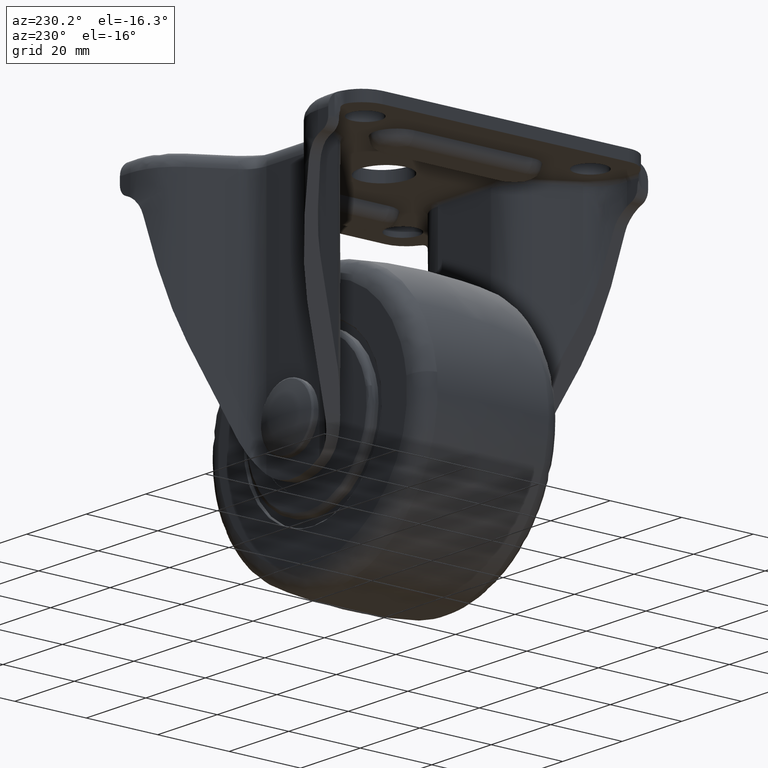
[diagram: clean part render]
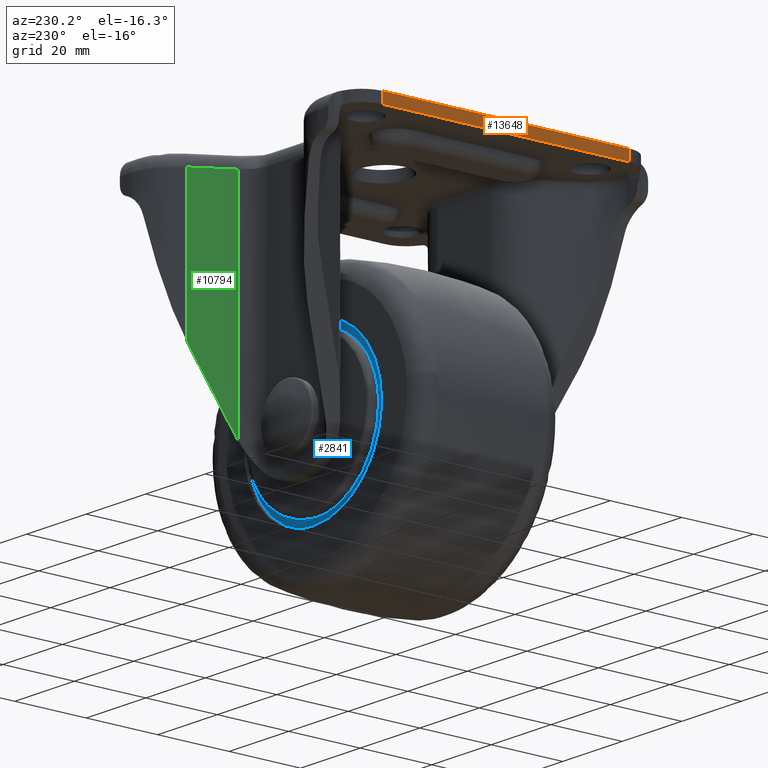
[diagram: same view with three faces highlighted in distinct colors, each labeled with its STEP entity id]
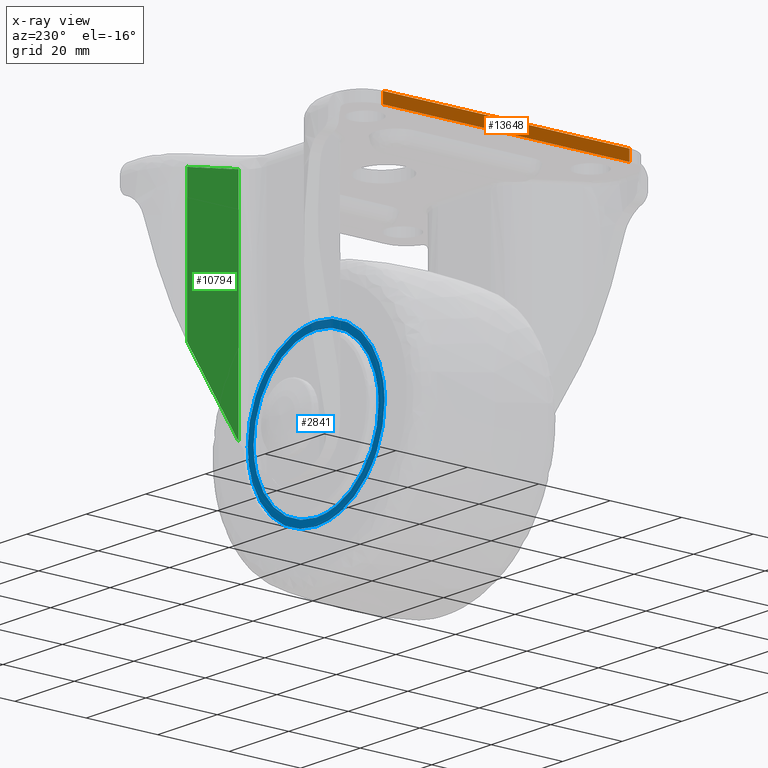
[diagram: x-ray of the same camera — body ghosted, the three highlighted faces saturated]
A machine part, auxiliary view with three faces highlighted in distinct colors.
The next image is the same camera in x-ray (body ghosted, the three faces saturated) — at least one of them is partly hidden behind the body in this view.
Their STEP definitions:

[orange] entity #13648 — the highlighted face is a freeform B-spline surface patch.
#11129=CARTESIAN_POINT('',(-40.999999999998302,-34.499995113078100,59.500002999999801));
#11130=VERTEX_POINT('',#11129);
#11141=CARTESIAN_POINT('',(-41.0,34.500000000000000,59.500002999999801));
#11142=VERTEX_POINT('',#11141);
#11143=CARTESIAN_POINT('',(-40.999999999998302,-34.499995113078100,59.500002999999801));
#11144=CARTESIAN_POINT('',(-41.0,34.500000000000000,59.500002999999801));
#11145=QUASI_UNIFORM_CURVE('',1,(#11143,#11144),.UNSPECIFIED.,.F.,.U.);
#11146=EDGE_CURVE('',#11130,#11142,#11145,.T.);
#13605=CARTESIAN_POINT('',(-40.999999999998302,-34.499995113078100,62.500000000000000));
#13606=VERTEX_POINT('',#13605);
#13617=CARTESIAN_POINT('',(-40.999999999998302,-34.499995113078100,59.500002999999801));
#13618=CARTESIAN_POINT('',(-40.999999999998302,-34.499995113078100,62.500000000000000));
#13619=QUASI_UNIFORM_CURVE('',1,(#13617,#13618),.UNSPECIFIED.,.F.,.U.);
#13620=EDGE_CURVE('',#11130,#13606,#13619,.T.);
#13627=CARTESIAN_POINT('',(-41.0,-37.946544735240970,62.649849844335442));
#13628=CARTESIAN_POINT('',(-41.0,-37.946544735240970,59.350153075198179));
#13629=CARTESIAN_POINT('',(-41.0,37.946551472886959,62.649849844335442));
#13630=CARTESIAN_POINT('',(-41.0,37.946551472886959,59.350153075198179));
#13631=B_SPLINE_SURFACE_WITH_KNOTS('',1,1,((#13627,#13629),(#13628,#13630)),.UNSPECIFIED.,.F.,.F.,.U.,(2,2),(2,2),(0.0,3.299696769137256),(0.0,75.893096208127929),.UNSPECIFIED.);
#13632=CARTESIAN_POINT('',(-41.0,34.500000000000000,62.500000000000000));
#13633=VERTEX_POINT('',#13632);
#13634=CARTESIAN_POINT('',(-40.999999999998302,-34.499995113078100,62.500000000000000));
#13635=CARTESIAN_POINT('',(-41.0,34.500000000000000,62.500000000000000));
#13636=QUASI_UNIFORM_CURVE('',1,(#13634,#13635),.UNSPECIFIED.,.F.,.U.);
#13637=EDGE_CURVE('',#13606,#13633,#13636,.T.);
#13638=ORIENTED_EDGE('',*,*,#13637,.T.);
#13639=CARTESIAN_POINT('',(-41.0,34.500000000000000,59.500002999999801));
#13640=CARTESIAN_POINT('',(-41.0,34.500000000000000,62.500000000000000));
#13641=QUASI_UNIFORM_CURVE('',1,(#13639,#13640),.UNSPECIFIED.,.F.,.U.);
#13642=EDGE_CURVE('',#11142,#13633,#13641,.T.);
#13643=ORIENTED_EDGE('',*,*,#13642,.F.);
#13644=ORIENTED_EDGE('',*,*,#11146,.F.);
#13645=ORIENTED_EDGE('',*,*,#13620,.T.);
#13646=EDGE_LOOP('',(#13638,#13643,#13644,#13645));
#13647=FACE_OUTER_BOUND('',#13646,.T.);
#13648=ADVANCED_FACE('',(#13647),#13631,.F.);

[blue] entity #2841 — the highlighted face is a freeform B-spline surface patch.
#2475=CARTESIAN_POINT('',(15.482824461624960,19.0,14.187394547029900));
#2476=VERTEX_POINT('',#2475);
#2482=CARTESIAN_POINT('',(21.000000000000501,19.0,0.000001657983934));
#2483=VERTEX_POINT('',#2482);
#2484=CARTESIAN_POINT('',(21.000000000000501,19.0,0.000001657983934));
#2485=CARTESIAN_POINT('',(21.000169291051652,19.0,1.379231354852942));
#2486=CARTESIAN_POINT('',(20.719297831476290,19.000000000000028,4.218734898100919));
#2487=CARTESIAN_POINT('',(19.484713548870861,18.999999999999961,8.191540467389942));
#2488=CARTESIAN_POINT('',(17.653999728538668,19.000000000000039,11.555187629441900));
#2489=CARTESIAN_POINT('',(16.195384745036002,19.0,13.409814154632230));
#2490=CARTESIAN_POINT('',(15.482824461624960,19.0,14.187394547029900));
#2491=B_SPLINE_CURVE_WITH_KNOTS('',3,(#2484,#2485,#2486,#2487,#2488,#2489,#2490),.UNSPECIFIED.,.F.,.U.,(4,1,1,1,4),(0.000000030301367,4.137681123489713,8.518721137977064,12.413048120190480,15.577149126204571),.UNSPECIFIED.);
#2492=EDGE_CURVE('',#2483,#2476,#2491,.T.);
#2494=CARTESIAN_POINT('',(1.116884E-012,19.0,-21.000000000000028));
#2495=VERTEX_POINT('',#2494);
#2496=CARTESIAN_POINT('',(1.116884E-012,19.0,-21.000000000000028));
#2497=CARTESIAN_POINT('',(1.718091372413424,19.000000000000011,-21.000425865638160));
#2498=CARTESIAN_POINT('',(4.638560144955660,18.999999999999989,-20.639487943904740));
#2499=CARTESIAN_POINT('',(8.552049365969726,19.0,-19.293089201940749));
#2500=CARTESIAN_POINT('',(11.875649675141480,19.0,-17.463886673555301));
#2501=CARTESIAN_POINT('',(14.678044356017150,19.000000000000021,-15.163993810950659));
#2502=CARTESIAN_POINT('',(16.815856608979939,18.999999999999890,-12.685421562266280));
#2503=CARTESIAN_POINT('',(18.599463003712660,18.999999999999950,-9.944102703702026));
#2504=CARTESIAN_POINT('',(19.998686584445728,19.000000000000110,-6.787595196559463));
#2505=CARTESIAN_POINT('',(20.835272294766948,18.999999999999780,-3.264284616464492));
#2506=CARTESIAN_POINT('',(21.000039995136252,19.000000000000490,-1.030813686327171));
#2507=CARTESIAN_POINT('',(21.000000000000501,19.0,0.000001657983934));
#2508=B_SPLINE_CURVE_WITH_KNOTS('',3,(#2496,#2497,#2498,#2499,#2500,#2501,#2502,#2503,#2504,#2505,#2506,#2507),.UNSPECIFIED.,.F.,.U.,(4,1,1,1,1,1,1,1,1,4),(0.000000055669297,5.154174273187334,8.762160365250193,12.370137958800340,16.493465434182770,19.585936855349779,22.163071373979200,26.286477394870460,29.894459353193842,32.986930774850428),.UNSPECIFIED.);
#2509=EDGE_CURVE('',#2495,#2483,#2508,.T.);
#2511=CARTESIAN_POINT('',(-15.482824461622650,19.0,-14.187394547030991));
#2512=VERTEX_POINT('',#2511);
#2513=CARTESIAN_POINT('',(-15.482824461622650,19.0,-14.187394547030991));
#2514=CARTESIAN_POINT('',(-14.625291336000620,19.0,-15.123431313918619));
#2515=CARTESIAN_POINT('',(-12.941695878353570,19.000000000000039,-16.655308109090459));
#2516=CARTESIAN_POINT('',(-9.969305149619402,18.999999999999979,-18.587736170063469));
#2517=CARTESIAN_POINT('',(-7.135821766064234,19.000000000000028,-19.834455142539010));
#2518=CARTESIAN_POINT('',(-3.717612214257206,18.999999999999961,-20.764112160579529));
#2519=CARTESIAN_POINT('',(-1.450824025529892,19.000000000000050,-21.000208976023469));
#2520=CARTESIAN_POINT('',(1.116884E-012,19.0,-21.000000000000028));
#2521=B_SPLINE_CURVE_WITH_KNOTS('',3,(#2513,#2514,#2515,#2516,#2517,#2518,#2519,#2520),.UNSPECIFIED.,.F.,.U.,(4,1,1,1,1,4),(0.000000017965917,3.808383496462229,6.800713682195111,10.609067632195311,13.057335976819950,17.409781296427369),.UNSPECIFIED.);
#2522=EDGE_CURVE('',#2512,#2495,#2521,.T.);
#2556=CARTESIAN_POINT('',(-20.999999999998270,19.0,-0.000001657984652));
#2557=VERTEX_POINT('',#2556);
#2558=CARTESIAN_POINT('',(-20.999999999998270,19.0,-0.000001657984652));
#2559=CARTESIAN_POINT('',(-21.000105366327510,19.0,-1.216964334404704));
#2560=CARTESIAN_POINT('',(-20.809008426063560,19.000000000000021,-3.407451477131334));
#2561=CARTESIAN_POINT('',(-19.927259710053391,19.000000000000021,-6.959390186099610));
#2562=CARTESIAN_POINT('',(-18.307368922146750,18.999999999999950,-10.613467338646730));
#2563=CARTESIAN_POINT('',(-16.524471149868191,19.000000000000039,-13.051077744544090));
#2564=CARTESIAN_POINT('',(-15.482824461622650,19.0,-14.187394547030991));
#2565=B_SPLINE_CURVE_WITH_KNOTS('',3,(#2558,#2559,#2560,#2561,#2562,#2563,#2564),.UNSPECIFIED.,.F.,.U.,(4,1,1,1,4),(0.000000030300750,3.650893485055645,6.571637548454463,10.952675584250150,15.577149126204979),.UNSPECIFIED.);
#2566=EDGE_CURVE('',#2557,#2512,#2565,.T.);
#2568=CARTESIAN_POINT('',(1.116884E-012,19.0,20.999999999998870));
#2569=VERTEX_POINT('',#2568);
#2570=CARTESIAN_POINT('',(1.116884E-012,19.0,20.999999999998870));
#2571=CARTESIAN_POINT('',(-1.975860493101105,19.000000000000028,21.000843221810609));
#2572=CARTESIAN_POINT('',(-5.239707996098047,19.0,20.535708861117769));
#2573=CARTESIAN_POINT('',(-9.093817666192557,19.0,19.021593019611199));
#2574=CARTESIAN_POINT('',(-11.993757538752240,18.999999999999989,17.331402816441930));
#2575=CARTESIAN_POINT('',(-14.821196357671850,19.000000000000089,15.068826574531240));
#2576=CARTESIAN_POINT('',(-17.325117687140541,19.000000000000060,12.092877899435790));
#2577=CARTESIAN_POINT('',(-19.341874362095499,18.999999999999961,8.481288214840919));
#2578=CARTESIAN_POINT('',(-20.666492526646049,18.999999999999950,4.552768653733915));
#2579=CARTESIAN_POINT('',(-21.000229683417398,19.000000000000082,1.546266475202366));
#2580=CARTESIAN_POINT('',(-20.999999999998270,19.0,-0.000001657984652));
#2581=B_SPLINE_CURVE_WITH_KNOTS('',3,(#2570,#2571,#2572,#2573,#2574,#2575,#2576,#2577,#2578,#2579,#2580),.UNSPECIFIED.,.F.,.U.,(4,1,1,1,1,1,1,1,4),(0.000000055671372,5.927321689206934,9.793010010426862,12.370137958801120,15.978062319754921,20.616809372167928,23.967061272362521,28.348146016974361,32.986930774850173),.UNSPECIFIED.);
#2582=EDGE_CURVE('',#2569,#2557,#2581,.T.);
#2584=CARTESIAN_POINT('',(15.482824461624960,19.0,14.187394547029900));
#2585=CARTESIAN_POINT('',(14.441624998417019,18.999999999999940,15.324132493410220));
#2586=CARTESIAN_POINT('',(12.725092156874780,19.000000000000099,16.825689041740599));
#2587=CARTESIAN_POINT('',(9.565153154212620,18.999999999999961,18.793798151149272));
#2588=CARTESIAN_POINT('',(6.796134316692088,18.999999999999950,19.969629513313109));
#2589=CARTESIAN_POINT('',(3.354937134474330,19.000000000000149,20.810248215182991));
#2590=CARTESIAN_POINT('',(1.269462863671520,18.999999999999812,21.000145897368728));
#2591=CARTESIAN_POINT('',(1.116884E-012,19.0,20.999999999998870));
#2592=B_SPLINE_CURVE_WITH_KNOTS('',3,(#2584,#2585,#2586,#2587,#2588,#2589,#2590,#2591),.UNSPECIFIED.,.F.,.U.,(4,1,1,1,1,4),(0.000000017965682,4.624476304236261,6.800713682194999,11.153124177949341,13.601397817946170,17.409781296427401),.UNSPECIFIED.);
#2593=EDGE_CURVE('',#2476,#2569,#2592,.T.);
#2741=CARTESIAN_POINT('',(-25.297699910841288,19.0,-25.297699910843050));
#2742=CARTESIAN_POINT('',(25.297701144659669,19.0,-25.297699910843050));
#2743=CARTESIAN_POINT('',(-25.297699910841288,19.0,25.297701144658038));
#2744=CARTESIAN_POINT('',(25.297701144659669,19.0,25.297701144658038));
#2745=B_SPLINE_SURFACE_WITH_KNOTS('',1,1,((#2741,#2743),(#2742,#2744)),.UNSPECIFIED.,.F.,.F.,.U.,(2,2),(2,2),(0.0,50.595401055500957),(0.0,50.595401055501092),.UNSPECIFIED.);
#2746=CARTESIAN_POINT('',(16.957379000974640,19.000000000000028,15.538575082572139));
#2747=VERTEX_POINT('',#2746);
#2748=CARTESIAN_POINT('',(1.116884E-012,19.0,22.999999999998870));
#2749=VERTEX_POINT('',#2748);
#2750=CARTESIAN_POINT('',(16.957379000974640,19.000000000000028,15.538575082572139));
#2751=CARTESIAN_POINT('',(16.185840703140919,19.000000000000011,16.380638114083009));
#2752=CARTESIAN_POINT('',(14.589528189285710,19.000000000000028,17.881261411170229));
#2753=CARTESIAN_POINT('',(11.819541614398700,18.999999999999989,19.825827590819550));
#2754=CARTESIAN_POINT('',(9.016808398731447,19.000000000000089,21.236534932274960));
#2755=CARTESIAN_POINT('',(5.064540138746788,18.999999999999901,22.591849461699649));
#2756=CARTESIAN_POINT('',(2.085646246503087,19.000000000000089,23.000823111614871));
#2757=CARTESIAN_POINT('',(1.116884E-012,19.0,22.999999999998870));
#2758=B_SPLINE_CURVE_WITH_KNOTS('',3,(#2750,#2751,#2752,#2753,#2754,#2755,#2756,#2757),.UNSPECIFIED.,.F.,.U.,(4,1,1,1,1,4),(0.000000041024030,3.426231150014282,6.554556472152408,10.129734018247660,12.811134814019789,19.067755514547191),.UNSPECIFIED.);
#2759=EDGE_CURVE('',#2747,#2749,#2758,.T.);
#2760=ORIENTED_EDGE('',*,*,#2759,.F.);
#2761=CARTESIAN_POINT('',(23.000000000000512,19.0,0.000001586858210));
#2762=VERTEX_POINT('',#2761);
#2763=CARTESIAN_POINT('',(23.000000000000512,19.0,0.000001586858210));
#2764=CARTESIAN_POINT('',(23.000024780136020,19.000000000000011,1.155135102938022));
#2765=CARTESIAN_POINT('',(22.792252737362539,19.000000000000028,3.909769607866776));
#2766=CARTESIAN_POINT('',(21.823251401895199,18.999999999999979,7.627164736737230));
#2767=CARTESIAN_POINT('',(19.934321203586759,19.000000000000050,11.758594258451060));
#2768=CARTESIAN_POINT('',(18.218388594404079,19.000000000000021,14.163077304389850));
#2769=CARTESIAN_POINT('',(16.957379000974640,19.000000000000028,15.538575082572139));
#2770=B_SPLINE_CURVE_WITH_KNOTS('',3,(#2763,#2764,#2765,#2766,#2767,#2768,#2769),.UNSPECIFIED.,.F.,.U.,(4,1,1,1,4),(0.000000025487452,3.465446280717336,8.263783988982929,11.462648278612900,17.060687537385689),.UNSPECIFIED.);
#2771=EDGE_CURVE('',#2762,#2747,#2770,.T.);
#2772=ORIENTED_EDGE('',*,*,#2771,.F.);
#2773=CARTESIAN_POINT('',(1.116884E-012,19.0,-23.000000000000028));
#2774=VERTEX_POINT('',#2773);
#2775=CARTESIAN_POINT('',(1.116884E-012,19.0,-23.000000000000028));
#2776=CARTESIAN_POINT('',(1.975815688325964,18.999999999999940,-23.000551768540220));
#2777=CARTESIAN_POINT('',(5.174376334408025,19.000000000000160,-22.585207929721161));
#2778=CARTESIAN_POINT('',(9.182027397799557,18.999999999999829,-21.178643469755059));
#2779=CARTESIAN_POINT('',(12.519549489026071,19.000000000000181,-19.421132936302278));
#2780=CARTESIAN_POINT('',(15.228032841310510,18.999999999999869,-17.360362709949349));
#2781=CARTESIAN_POINT('',(17.647402123995111,18.999999999999940,-14.850020965520040));
#2782=CARTESIAN_POINT('',(19.783127006864280,19.000000000000039,-11.970740225283439));
#2783=CARTESIAN_POINT('',(21.631769221897951,19.000000000000171,-8.241496285373694));
#2784=CARTESIAN_POINT('',(22.765017411312940,18.999999999999702,-4.045581343491742));
#2785=CARTESIAN_POINT('',(23.000101141558609,19.000000000000469,-1.317164902435782));
#2786=CARTESIAN_POINT('',(23.000000000000512,19.0,0.000001586858210));
#2787=B_SPLINE_CURVE_WITH_KNOTS('',3,(#2775,#2776,#2777,#2778,#2779,#2780,#2781,#2782,#2783,#2784,#2785,#2786),.UNSPECIFIED.,.F.,.U.,(4,1,1,1,1,1,1,1,1,4),(0.000000024577787,5.927310060759229,9.596647352807864,12.701477861785619,17.217515711121280,19.757776009985569,23.144808057672819,27.943173825020381,32.177026242684633,36.128543100512431),.UNSPECIFIED.);
#2788=EDGE_CURVE('',#2774,#2762,#2787,.T.);
#2789=ORIENTED_EDGE('',*,*,#2788,.F.);
#2790=CARTESIAN_POINT('',(-16.957379000972260,19.000000000000028,-15.538575082573161));
#2791=VERTEX_POINT('',#2790);
#2792=CARTESIAN_POINT('',(-16.957379000972260,19.000000000000028,-15.538575082573161));
#2793=CARTESIAN_POINT('',(-15.984615651187349,18.999999999999989,-16.600353821731481));
#2794=CARTESIAN_POINT('',(-13.764808089320320,19.000000000000082,-18.607214873980499));
#2795=CARTESIAN_POINT('',(-9.786034873264711,18.999999999999890,-20.996963968365531));
#2796=CARTESIAN_POINT('',(-5.114379879626593,19.000000000000291,-22.615487559564240));
#2797=CARTESIAN_POINT('',(-1.737968883366667,18.999999999999901,-23.000287335017020));
#2798=CARTESIAN_POINT('',(1.116884E-012,19.0,-23.000000000000028));
#2799=B_SPLINE_CURVE_WITH_KNOTS('',3,(#2792,#2793,#2794,#2795,#2796,#2797,#2798),.UNSPECIFIED.,.F.,.U.,(4,1,1,1,4),(0.000000041024546,4.320037525726088,8.938021537352972,13.853915262487680,19.067755514547130),.UNSPECIFIED.);
#2800=EDGE_CURVE('',#2791,#2774,#2799,.T.);
#2801=ORIENTED_EDGE('',*,*,#2800,.F.);
#2802=CARTESIAN_POINT('',(-22.999999999998270,19.0,-0.000001586858555));
#2803=VERTEX_POINT('',#2802);
#2804=CARTESIAN_POINT('',(-22.999999999998270,19.0,-0.000001586858555));
#2805=CARTESIAN_POINT('',(-23.000065277172592,19.000000000000011,-1.155147470926281));
#2806=CARTESIAN_POINT('',(-22.832292498794519,19.000000000000011,-3.376565262145144));
#2807=CARTESIAN_POINT('',(-22.073558974303520,19.000000000000011,-6.766516842194574));
#2808=CARTESIAN_POINT('',(-20.910317979121132,19.000000000000089,-9.757688237275602));
#2809=CARTESIAN_POINT('',(-19.215803107959939,18.999999999999918,-12.787252110937169));
#2810=CARTESIAN_POINT('',(-17.857945367043129,19.000000000000121,-14.555968270809950));
#2811=CARTESIAN_POINT('',(-16.957379000972260,19.000000000000028,-15.538575082573161));
#2812=B_SPLINE_CURVE_WITH_KNOTS('',3,(#2804,#2805,#2806,#2807,#2808,#2809,#2810,#2811),.UNSPECIFIED.,.F.,.U.,(4,1,1,1,1,4),(0.000000025488017,3.465446280717840,6.664353512148740,10.396334050707500,13.062091738457200,17.060687537386439),.UNSPECIFIED.);
#2813=EDGE_CURVE('',#2803,#2791,#2812,.T.);
#2814=ORIENTED_EDGE('',*,*,#2813,.F.);
#2815=CARTESIAN_POINT('',(1.116884E-012,19.0,22.999999999998870));
#2816=CARTESIAN_POINT('',(-1.034905012222722,18.999999999999979,23.000016191638920));
#2817=CARTESIAN_POINT('',(-3.481111282487096,19.000000000000060,22.834740666692529));
#2818=CARTESIAN_POINT('',(-7.071394843112584,18.999999999999911,22.005364753326429));
#2819=CARTESIAN_POINT('',(-10.724432803565470,19.000000000000171,20.465878981084028));
#2820=CARTESIAN_POINT('',(-13.516746626276490,19.000000000000021,18.697613575829891));
#2821=CARTESIAN_POINT('',(-15.895223751316889,18.999999999999829,16.696194408407280));
#2822=CARTESIAN_POINT('',(-18.027151206722301,19.000000000000110,14.429394102457330));
#2823=CARTESIAN_POINT('',(-20.271124487718559,18.999999999999918,11.159053283674201));
#2824=CARTESIAN_POINT('',(-21.858795217845881,19.000000000000121,7.516987959898414));
#2825=CARTESIAN_POINT('',(-22.797348364072182,18.999999999999801,3.669219325106941));
#2826=CARTESIAN_POINT('',(-23.000121832313589,19.000000000000210,1.317169495457985));
#2827=CARTESIAN_POINT('',(-22.999999999998270,19.0,-0.000001586858555));
#2828=B_SPLINE_CURVE_WITH_KNOTS('',3,(#2815,#2816,#2817,#2818,#2819,#2820,#2821,#2822,#2823,#2824,#2825,#2826,#2827),.UNSPECIFIED.,.F.,.U.,(4,1,1,1,1,1,1,1,1,1,4),(0.000000024575854,3.104745048811552,7.338600981022601,11.007934398611340,14.959508806452220,17.217515711121120,20.322276738307469,24.273836380414810,29.072204111452368,32.177026242684178,36.128543100511962),.UNSPECIFIED.);
#2829=EDGE_CURVE('',#2749,#2803,#2828,.T.);
#2830=ORIENTED_EDGE('',*,*,#2829,.F.);
#2831=EDGE_LOOP('',(#2760,#2772,#2789,#2801,#2814,#2830));
#2832=FACE_OUTER_BOUND('',#2831,.T.);
#2833=ORIENTED_EDGE('',*,*,#2582,.T.);
#2834=ORIENTED_EDGE('',*,*,#2566,.T.);
#2835=ORIENTED_EDGE('',*,*,#2522,.T.);
#2836=ORIENTED_EDGE('',*,*,#2509,.T.);
#2837=ORIENTED_EDGE('',*,*,#2492,.T.);
#2838=ORIENTED_EDGE('',*,*,#2593,.T.);
#2839=EDGE_LOOP('',(#2833,#2834,#2835,#2836,#2837,#2838));
#2840=FACE_BOUND('',#2839,.T.);
#2841=ADVANCED_FACE('',(#2832,#2840),#2745,.F.);

[green] entity #10794 — the highlighted face is a freeform B-spline surface patch.
#8283=CARTESIAN_POINT('',(14.468953329208979,28.679387027176851,-2.455930934328065));
#8284=VERTEX_POINT('',#8283);
#8312=CARTESIAN_POINT('',(14.506453999999900,28.742491813975249,-2.316132000000115));
#8313=VERTEX_POINT('',#8312);
#8314=CARTESIAN_POINT('',(14.468953329208979,28.679387027176851,-2.455930934328065));
#8315=CARTESIAN_POINT('',(14.506453999999900,28.742491813975249,-2.316132000000115));
#8316=QUASI_UNIFORM_CURVE('',1,(#8314,#8315),.UNSPECIFIED.,.F.,.U.);
#8317=EDGE_CURVE('',#8284,#8313,#8316,.T.);
#8736=CARTESIAN_POINT('',(20.182175332901100,38.293392560194050,19.259276991360899));
#8737=VERTEX_POINT('',#8736);
#8796=CARTESIAN_POINT('',(14.506453999999900,28.742491813975249,-2.316132000000115));
#8797=CARTESIAN_POINT('',(20.182175332901100,38.293392560194050,19.259276991360899));
#8798=QUASI_UNIFORM_CURVE('',1,(#8796,#8797),.UNSPECIFIED.,.F.,.U.);
#8799=EDGE_CURVE('',#8313,#8737,#8798,.T.);
#10751=CARTESIAN_POINT('',(14.468953329208899,28.679387027176698,58.500000000000000));
#10752=VERTEX_POINT('',#10751);
#10763=CARTESIAN_POINT('',(14.468953329208979,28.679387027176851,-2.455930934328065));
#10764=CARTESIAN_POINT('',(14.468953329208899,28.679387027176698,58.500000000000000));
#10765=QUASI_UNIFORM_CURVE('',1,(#10763,#10764),.UNSPECIFIED.,.F.,.U.);
#10766=EDGE_CURVE('',#8284,#10752,#10765,.T.);
#10772=CARTESIAN_POINT('',(14.183577901197809,28.199167469436279,-5.500679566353332));
#10773=CARTESIAN_POINT('',(20.467550914152749,38.773612375802173,-5.500679566353332));
#10774=CARTESIAN_POINT('',(14.183577901197809,28.199167469436279,61.544750266990746));
#10775=CARTESIAN_POINT('',(20.467550914152749,38.773612375802173,61.544750266990746));
#10776=B_SPLINE_SURFACE_WITH_KNOTS('',1,1,((#10772,#10774),(#10773,#10775)),.UNSPECIFIED.,.F.,.F.,.U.,(2,2),(2,2),(0.0,12.300699244567911),(0.0,67.045429833344073),.UNSPECIFIED.);
#10777=ORIENTED_EDGE('',*,*,#10766,.T.);
#10778=CARTESIAN_POINT('',(20.182175332900950,38.293392560193801,58.500000000000000));
#10779=VERTEX_POINT('',#10778);
#10780=CARTESIAN_POINT('',(14.468953329208899,28.679387027176698,58.500000000000000));
#10781=CARTESIAN_POINT('',(20.182175332900950,38.293392560193801,58.500000000000000));
#10782=QUASI_UNIFORM_CURVE('',1,(#10780,#10781),.UNSPECIFIED.,.F.,.U.);
#10783=EDGE_CURVE('',#10752,#10779,#10782,.T.);
#10784=ORIENTED_EDGE('',*,*,#10783,.T.);
#10785=CARTESIAN_POINT('',(20.182175332901100,38.293392560194050,19.259276991360899));
#10786=CARTESIAN_POINT('',(20.182175332900950,38.293392560193801,58.500000000000000));
#10787=QUASI_UNIFORM_CURVE('',1,(#10785,#10786),.UNSPECIFIED.,.F.,.U.);
#10788=EDGE_CURVE('',#8737,#10779,#10787,.T.);
#10789=ORIENTED_EDGE('',*,*,#10788,.F.);
#10790=ORIENTED_EDGE('',*,*,#8799,.F.);
#10791=ORIENTED_EDGE('',*,*,#8317,.F.);
#10792=EDGE_LOOP('',(#10777,#10784,#10789,#10790,#10791));
#10793=FACE_OUTER_BOUND('',#10792,.T.);
#10794=ADVANCED_FACE('',(#10793),#10776,.F.);